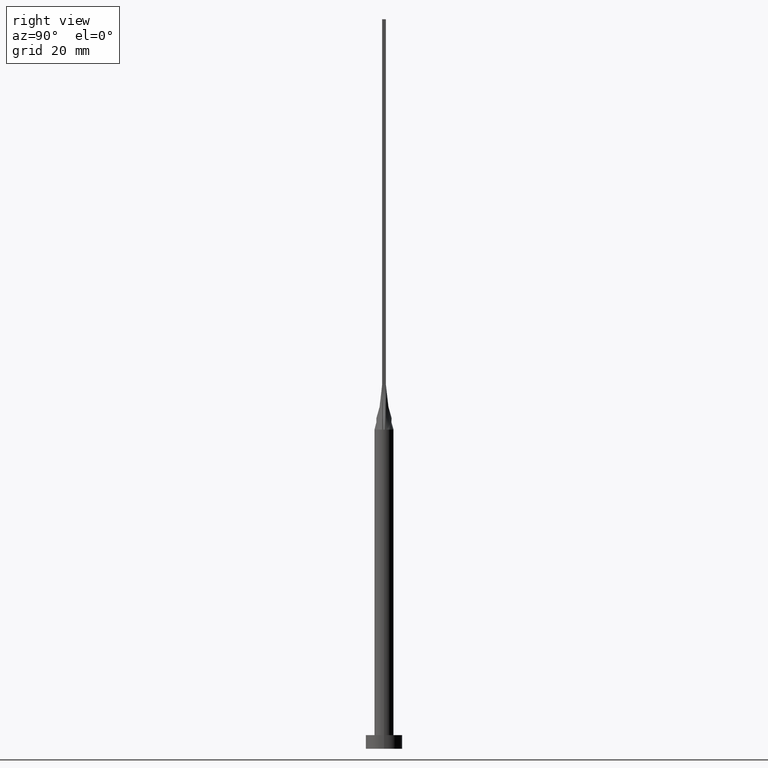
[diagram: clean part render]
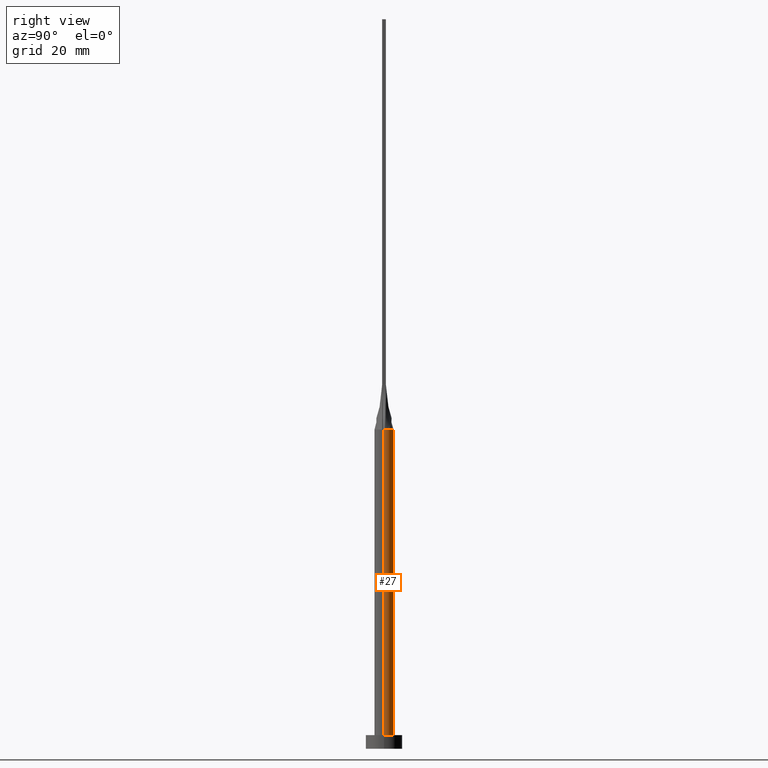
[diagram: same view with one face highlighted and labeled with its STEP entity id]
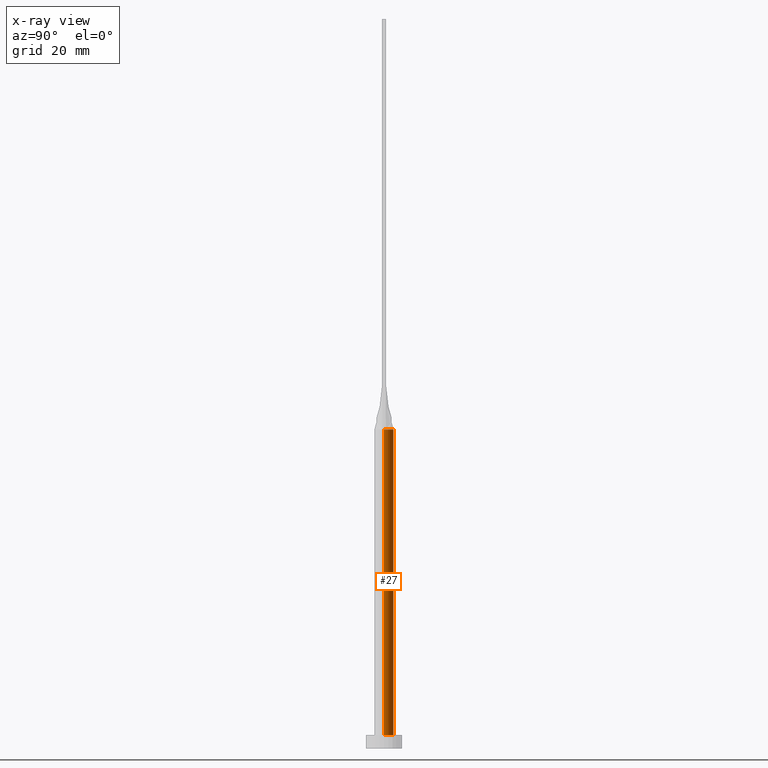
[diagram: x-ray of the same camera — body ghosted, the highlighted face saturated]
A machine part, right view. The second image highlights one B-rep face of the part: STEP entity #27.
The next image is the same camera in x-ray: the body ghosted, the highlighted face saturated — about 0% of this face is hidden behind the body in this view.
In plain terms, the highlighted cylindrical surface (edge-blend (fillet) strip) has radius 2.1 mm, axis along (-0, -0, -1).
Its self-contained STEP definition (entity closure, byte-faithful):
#19 = ORIENTED_EDGE ( 'NONE', *, *, #530, .T. ) ;
#20 = CIRCLE ( 'NONE', #458, 2.100000000000000089 ) ;
#24 = DIRECTION ( 'NONE',  ( 0.000000000000000000, 0.000000000000000000, 1.000000000000000000 ) ) ;
#27 = ADVANCED_FACE ( 'NONE', ( #249 ), #316, .T. ) ;
#34 = CARTESIAN_POINT ( 'NONE',  ( -1.638039177766652976, 1.336522195786985057, 70.00000000000001421 ) ) ;
#40 = CARTESIAN_POINT ( 'NONE',  ( -1.769939800381045147, 1.149026496286139842, 70.00000000000001421 ) ) ;
#42 = CARTESIAN_POINT ( 'NONE',  ( -0.2839879338753505955, 2.100000000000000533, 70.00000000000001421 ) ) ;
#58 = DIRECTION ( 'NONE',  ( 1.000000000000000000, 0.000000000000000000, 0.000000000000000000 ) ) ;
#59 = B_SPLINE_CURVE_WITH_KNOTS ( 'NONE', 3,
 ( #77, #389, #392, #485, #123, #251, #296, #442, #205, #42, #172, #342, #528, #34, #40, #78, #531, #85 ),
 .UNSPECIFIED., .F., .F.,
 ( 4, 2, 2, 2, 2, 2, 2, 2, 4 ),
 ( 0.000000000000000000, 0.1250000000000000000, 0.2500000000000000000, 0.3750000000000000000, 0.5000000000000000000, 0.6250000000000000000, 0.7500000000000000000, 0.8750000000000000000, 1.000000000000000000 ),
 .UNSPECIFIED. ) ;
#62 = CARTESIAN_POINT ( 'NONE',  ( -2.100000000000000089, 0.000000000000000000, 70.00000000000000000 ) ) ;
#77 = CARTESIAN_POINT ( 'NONE',  ( 2.055132260641998609, 0.4326595789354660826, 70.00000000000000000 ) ) ;
#78 = CARTESIAN_POINT ( 'NONE',  ( -1.960396204527856456, 0.7808940436533434726, 70.00000000000001421 ) ) ;
#85 = CARTESIAN_POINT ( 'NONE',  ( -2.055148177435248691, 0.4326628259079252081, 70.00000000000000000 ) ) ;
#95 = AXIS2_PLACEMENT_3D ( 'NONE', #161, #318, #156 ) ;
#99 = ORIENTED_EDGE ( 'NONE', *, *, #413, .F. ) ;
#103 = DIRECTION ( 'NONE',  ( -0.000000000000000000, -0.000000000000000000, -1.000000000000000000 ) ) ;
#106 = EDGE_LOOP ( 'NONE', ( #376, #19, #124, #495, #99, #338 ) ) ;
#108 = LINE ( 'NONE', #278, #506 ) ;
#109 = CARTESIAN_POINT ( 'NONE',  ( 2.055132260641998609, 0.4326595789354660826, 70.00000000000000000 ) ) ;
#110 = VERTEX_POINT ( 'NONE', #206 ) ;
#122 = VERTEX_POINT ( 'NONE', #304 ) ;
#123 = CARTESIAN_POINT ( 'NONE',  ( 1.638039177766652754, 1.336522195786985057, 70.00000000000001421 ) ) ;
#124 = ORIENTED_EDGE ( 'NONE', *, *, #188, .T. ) ;
#126 = DIRECTION ( 'NONE',  ( 0.000000000000000000, 0.000000000000000000, 1.000000000000000000 ) ) ;
#129 = CARTESIAN_POINT ( 'NONE',  ( 0.000000000000000000, 0.000000000000000000, 3.000000000000000000 ) ) ;
#131 = EDGE_CURVE ( 'NONE', #475, #276, #59, .T. ) ;
#135 = AXIS2_PLACEMENT_3D ( 'NONE', #527, #126, #300 ) ;
#156 = DIRECTION ( 'NONE',  ( -1.000000000000000000, 0.000000000000000000, 0.000000000000000000 ) ) ;
#161 = CARTESIAN_POINT ( 'NONE',  ( 0.000000000000000000, 0.000000000000000000, 70.00000000000000000 ) ) ;
#172 = CARTESIAN_POINT ( 'NONE',  ( -0.5670887265440298641, 2.040296735810464668, 70.00000000000001421 ) ) ;
#177 = CARTESIAN_POINT ( 'NONE',  ( 2.099758441344840243, 4.928843353830161703E-16, 70.00000000000000000 ) ) ;
#187 = VERTEX_POINT ( 'NONE', #339 ) ;
#188 = EDGE_CURVE ( 'NONE', #110, #187, #427, .T. ) ;
#192 = LINE ( 'NONE', #62, #213 ) ;
#196 = DIRECTION ( 'NONE',  ( -0.000000000000000000, -0.000000000000000000, -1.000000000000000000 ) ) ;
#205 = CARTESIAN_POINT ( 'NONE',  ( 0.2839879338753505955, 2.100000000000000533, 70.00000000000000000 ) ) ;
#206 = CARTESIAN_POINT ( 'NONE',  ( 2.100000000000000089, 2.571758278209441957E-16, 3.000000000000000000 ) ) ;
#213 = VECTOR ( 'NONE', #196, 1000.000000000000000 ) ;
#249 = FACE_OUTER_BOUND ( 'NONE', #106, .T. ) ;
#251 = CARTESIAN_POINT ( 'NONE',  ( 1.288188016604684183, 1.676316068528189041, 70.00000000000001421 ) ) ;
#261 = CARTESIAN_POINT ( 'NONE',  ( -2.055148177435248691, 0.4326628259079252081, 70.00000000000000000 ) ) ;
#274 = CARTESIAN_POINT ( 'NONE',  ( 0.000000000000000000, 0.000000000000000000, 70.00000000000000000 ) ) ;
#276 = VERTEX_POINT ( 'NONE', #261 ) ;
#278 = CARTESIAN_POINT ( 'NONE',  ( 2.100000000000000089, 2.571758278209441957E-16, 70.00000000000000000 ) ) ;
#296 = CARTESIAN_POINT ( 'NONE',  ( 1.069497409764671003, 1.827724181718572538, 70.00000000000000000 ) ) ;
#300 = DIRECTION ( 'NONE',  ( 1.000000000000000000, 0.000000000000000000, 0.000000000000000000 ) ) ;
#304 = CARTESIAN_POINT ( 'NONE',  ( -2.099758441344840243, -1.448674240509545331E-15, 70.00000000000000000 ) ) ;
#316 = CYLINDRICAL_SURFACE ( 'NONE', #95, 2.100000000000000089 ) ;
#318 = DIRECTION ( 'NONE',  ( -0.000000000000000000, -0.000000000000000000, -1.000000000000000000 ) ) ;
#338 = ORIENTED_EDGE ( 'NONE', *, *, #131, .F. ) ;
#339 = CARTESIAN_POINT ( 'NONE',  ( -2.100000000000000089, 0.000000000000000000, 3.000000000000000000 ) ) ;
#342 = CARTESIAN_POINT ( 'NONE',  ( -1.069497409764671003, 1.827724181718571872, 70.00000000000000000 ) ) ;
#362 = AXIS2_PLACEMENT_3D ( 'NONE', #129, #576, #434 ) ;
#376 = ORIENTED_EDGE ( 'NONE', *, *, #400, .F. ) ;
#388 = CIRCLE ( 'NONE', #135, 2.100000000000000089 ) ;
#389 = CARTESIAN_POINT ( 'NONE',  ( 2.019676033883313515, 0.6001949545017501997, 70.00000000000001421 ) ) ;
#391 = VERTEX_POINT ( 'NONE', #177 ) ;
#392 = CARTESIAN_POINT ( 'NONE',  ( 1.960396204527856900, 0.7808940436533436946, 70.00000000000000000 ) ) ;
#400 = EDGE_CURVE ( 'NONE', #391, #475, #388, .T. ) ;
#413 = EDGE_CURVE ( 'NONE', #276, #122, #20, .T. ) ;
#427 = CIRCLE ( 'NONE', #362, 2.100000000000000089 ) ;
#434 = DIRECTION ( 'NONE',  ( 1.000000000000000000, 0.000000000000000000, 0.000000000000000000 ) ) ;
#442 = CARTESIAN_POINT ( 'NONE',  ( 0.5670887265440297531, 2.040296735810463780, 70.00000000000001421 ) ) ;
#458 = AXIS2_PLACEMENT_3D ( 'NONE', #274, #24, #58 ) ;
#475 = VERTEX_POINT ( 'NONE', #109 ) ;
#485 = CARTESIAN_POINT ( 'NONE',  ( 1.769939800381044259, 1.149026496286139620, 70.00000000000000000 ) ) ;
#495 = ORIENTED_EDGE ( 'NONE', *, *, #557, .F. ) ;
#506 = VECTOR ( 'NONE', #103, 1000.000000000000000 ) ;
#527 = CARTESIAN_POINT ( 'NONE',  ( 0.000000000000000000, 0.000000000000000000, 70.00000000000000000 ) ) ;
#528 = CARTESIAN_POINT ( 'NONE',  ( -1.288188016604684183, 1.676316068528189263, 70.00000000000002842 ) ) ;
#530 = EDGE_CURVE ( 'NONE', #391, #110, #108, .T. ) ;
#531 = CARTESIAN_POINT ( 'NONE',  ( -2.019676033883313959, 0.6001949545017503107, 70.00000000000001421 ) ) ;
#557 = EDGE_CURVE ( 'NONE', #122, #187, #192, .T. ) ;
#576 = DIRECTION ( 'NONE',  ( 0.000000000000000000, 0.000000000000000000, 1.000000000000000000 ) ) ;